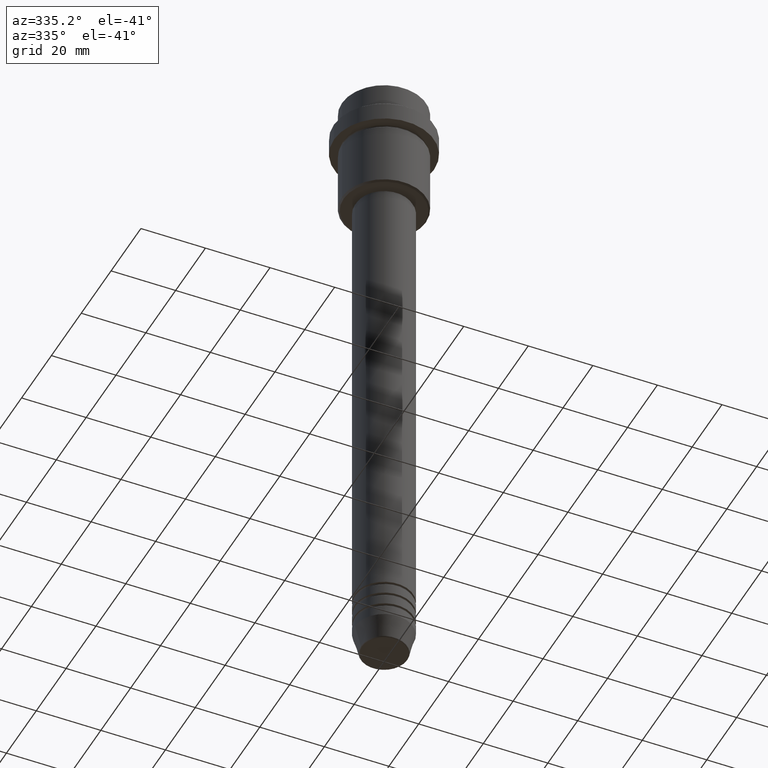
[diagram: clean part render]
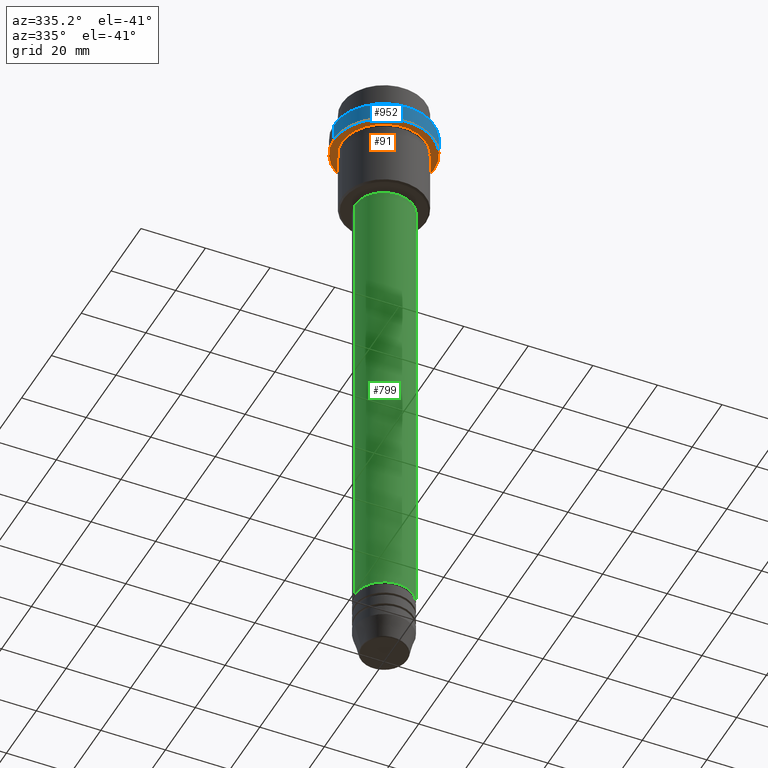
[diagram: same view with three faces highlighted in distinct colors, each labeled with its STEP entity id]
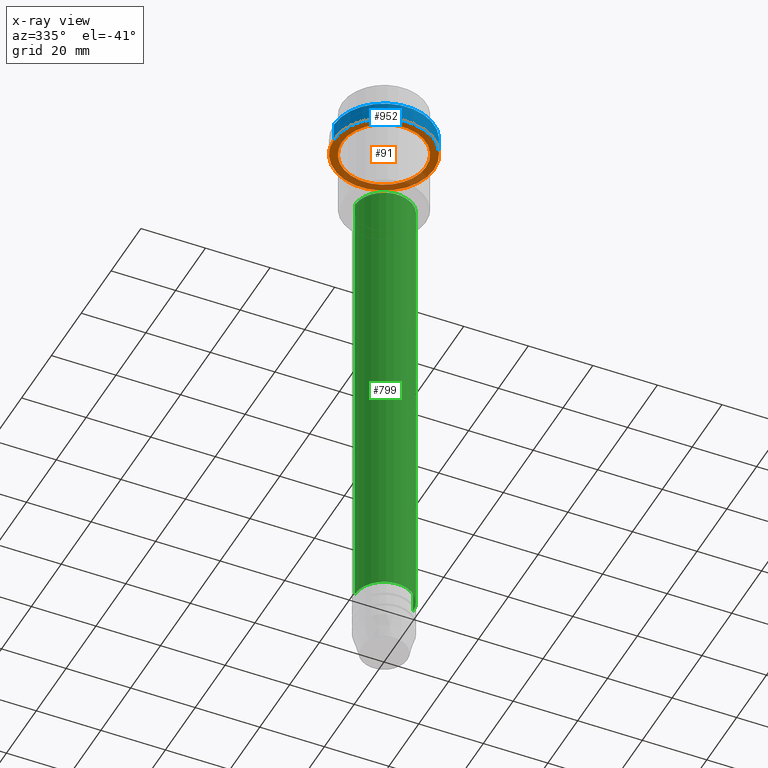
[diagram: x-ray of the same camera — body ghosted, the three highlighted faces saturated]
A machine part, auxiliary view with three faces highlighted in distinct colors.
The next image is the same camera in x-ray (body ghosted, the three faces saturated) — at least one of them is partly hidden behind the body in this view.
Their STEP definitions:

[orange] entity #91 — the highlighted planar face has unit normal (0, 0, -1).
#10 = DIRECTION ( 'NONE',  ( -0.000000000000000000, -0.000000000000000000, 1.000000000000000000 ) ) ;
#21 = DIRECTION ( 'NONE',  ( 1.000000000000000000, 0.000000000000000000, 0.000000000000000000 ) ) ;
#91 = ADVANCED_FACE ( 'NONE', ( #386, #1366 ), #1137, .T. ) ;
#144 = DIRECTION ( 'NONE',  ( -0.000000000000000000, -0.000000000000000000, 1.000000000000000000 ) ) ;
#154 = EDGE_LOOP ( 'NONE', ( #897, #724 ) ) ;
#186 = AXIS2_PLACEMENT_3D ( 'NONE', #1131, #935, #807 ) ;
#204 = EDGE_CURVE ( 'NONE', #1166, #473, #1377, .T. ) ;
#206 = DIRECTION ( 'NONE',  ( -0.000000000000000000, -0.000000000000000000, 1.000000000000000000 ) ) ;
#236 = AXIS2_PLACEMENT_3D ( 'NONE', #534, #954, #504 ) ;
#302 = EDGE_CURVE ( 'NONE', #1262, #1255, #1174, .T. ) ;
#347 = CARTESIAN_POINT ( 'NONE',  ( -15.50000000000000000, 1.898202538678397557E-15, -15.00000000000000000 ) ) ;
#353 = AXIS2_PLACEMENT_3D ( 'NONE', #1349, #144, #371 ) ;
#358 = CIRCLE ( 'NONE', #987, 15.50000000000000000 ) ;
#369 = EDGE_CURVE ( 'NONE', #1255, #1262, #1379, .T. ) ;
#371 = DIRECTION ( 'NONE',  ( 1.000000000000000000, 0.000000000000000000, 0.000000000000000000 ) ) ;
#386 = FACE_BOUND ( 'NONE', #562, .T. ) ;
#407 = CARTESIAN_POINT ( 'NONE',  ( 0.000000000000000000, 0.000000000000000000, -15.00000000000000000 ) ) ;
#447 = ORIENTED_EDGE ( 'NONE', *, *, #369, .T. ) ;
#473 = VERTEX_POINT ( 'NONE', #347 ) ;
#489 = AXIS2_PLACEMENT_3D ( 'NONE', #407, #206, #512 ) ;
#499 = EDGE_CURVE ( 'NONE', #473, #1166, #358, .T. ) ;
#504 = DIRECTION ( 'NONE',  ( -1.000000000000000000, 0.000000000000000000, 0.000000000000000000 ) ) ;
#512 = DIRECTION ( 'NONE',  ( -1.000000000000000000, 0.000000000000000000, 0.000000000000000000 ) ) ;
#534 = CARTESIAN_POINT ( 'NONE',  ( 0.000000000000000000, 0.000000000000000000, -15.00000000000000000 ) ) ;
#550 = CARTESIAN_POINT ( 'NONE',  ( 0.000000000000000000, 0.000000000000000000, -15.00000000000000000 ) ) ;
#562 = EDGE_LOOP ( 'NONE', ( #1235, #447 ) ) ;
#724 = ORIENTED_EDGE ( 'NONE', *, *, #499, .F. ) ;
#792 = CARTESIAN_POINT ( 'NONE',  ( 15.50000000000000000, 0.000000000000000000, -15.00000000000000000 ) ) ;
#807 = DIRECTION ( 'NONE',  ( -1.000000000000000000, 0.000000000000000000, -0.000000000000000000 ) ) ;
#897 = ORIENTED_EDGE ( 'NONE', *, *, #204, .F. ) ;
#911 = CARTESIAN_POINT ( 'NONE',  ( 12.99999999999999645, 1.592040838891558701E-15, -15.00000000000000000 ) ) ;
#928 = CARTESIAN_POINT ( 'NONE',  ( -12.99999999999999645, 0.000000000000000000, -15.00000000000000000 ) ) ;
#935 = DIRECTION ( 'NONE',  ( 0.000000000000000000, 0.000000000000000000, -1.000000000000000000 ) ) ;
#954 = DIRECTION ( 'NONE',  ( -0.000000000000000000, -0.000000000000000000, 1.000000000000000000 ) ) ;
#987 = AXIS2_PLACEMENT_3D ( 'NONE', #550, #10, #21 ) ;
#1131 = CARTESIAN_POINT ( 'NONE',  ( 0.000000000000000000, 15.50000000000000000, -15.00000000000000000 ) ) ;
#1137 = PLANE ( 'NONE',  #186 ) ;
#1166 = VERTEX_POINT ( 'NONE', #792 ) ;
#1174 = CIRCLE ( 'NONE', #236, 12.99999999999999645 ) ;
#1235 = ORIENTED_EDGE ( 'NONE', *, *, #302, .T. ) ;
#1255 = VERTEX_POINT ( 'NONE', #911 ) ;
#1262 = VERTEX_POINT ( 'NONE', #928 ) ;
#1349 = CARTESIAN_POINT ( 'NONE',  ( 0.000000000000000000, 0.000000000000000000, -15.00000000000000000 ) ) ;
#1366 = FACE_OUTER_BOUND ( 'NONE', #154, .T. ) ;
#1377 = CIRCLE ( 'NONE', #353, 15.50000000000000000 ) ;
#1379 = CIRCLE ( 'NONE', #489, 12.99999999999999645 ) ;

[blue] entity #952 — the highlighted cylindrical surface (partial cylindrical patch) has radius 15.5 mm, axis along (-0, -0, 1).
#10 = DIRECTION ( 'NONE',  ( -0.000000000000000000, -0.000000000000000000, 1.000000000000000000 ) ) ;
#21 = DIRECTION ( 'NONE',  ( 1.000000000000000000, 0.000000000000000000, 0.000000000000000000 ) ) ;
#62 = CARTESIAN_POINT ( 'NONE',  ( 0.000000000000000000, 0.000000000000000000, -9.499999999999984013 ) ) ;
#194 = FACE_OUTER_BOUND ( 'NONE', #865, .T. ) ;
#196 = DIRECTION ( 'NONE',  ( 1.000000000000000000, 0.000000000000000000, 0.000000000000000000 ) ) ;
#257 = VECTOR ( 'NONE', #747, 1000.000000000000000 ) ;
#265 = DIRECTION ( 'NONE',  ( -0.000000000000000000, -0.000000000000000000, 1.000000000000000000 ) ) ;
#279 = VERTEX_POINT ( 'NONE', #653 ) ;
#291 = EDGE_CURVE ( 'NONE', #1166, #279, #1198, .T. ) ;
#322 = CYLINDRICAL_SURFACE ( 'NONE', #602, 15.50000000000000000 ) ;
#347 = CARTESIAN_POINT ( 'NONE',  ( -15.50000000000000000, 1.898202538678397557E-15, -15.00000000000000000 ) ) ;
#358 = CIRCLE ( 'NONE', #987, 15.50000000000000000 ) ;
#473 = VERTEX_POINT ( 'NONE', #347 ) ;
#492 = AXIS2_PLACEMENT_3D ( 'NONE', #62, #828, #196 ) ;
#499 = EDGE_CURVE ( 'NONE', #473, #1166, #358, .T. ) ;
#502 = CARTESIAN_POINT ( 'NONE',  ( -15.50000000000000000, 1.898202538678397557E-15, -9.499999999999984013 ) ) ;
#507 = DIRECTION ( 'NONE',  ( 1.000000000000000000, 0.000000000000000000, 0.000000000000000000 ) ) ;
#550 = CARTESIAN_POINT ( 'NONE',  ( 0.000000000000000000, 0.000000000000000000, -15.00000000000000000 ) ) ;
#602 = AXIS2_PLACEMENT_3D ( 'NONE', #1294, #951, #507 ) ;
#653 = CARTESIAN_POINT ( 'NONE',  ( 15.50000000000000000, 0.000000000000000000, -9.499999999999984013 ) ) ;
#747 = DIRECTION ( 'NONE',  ( -0.000000000000000000, -0.000000000000000000, 1.000000000000000000 ) ) ;
#792 = CARTESIAN_POINT ( 'NONE',  ( 15.50000000000000000, 0.000000000000000000, -15.00000000000000000 ) ) ;
#828 = DIRECTION ( 'NONE',  ( 0.000000000000000000, 0.000000000000000000, -1.000000000000000000 ) ) ;
#865 = EDGE_LOOP ( 'NONE', ( #1268, #1183, #1395, #893 ) ) ;
#893 = ORIENTED_EDGE ( 'NONE', *, *, #1087, .T. ) ;
#926 = VECTOR ( 'NONE', #265, 1000.000000000000000 ) ;
#932 = LINE ( 'NONE', #1253, #926 ) ;
#951 = DIRECTION ( 'NONE',  ( -0.000000000000000000, -0.000000000000000000, 1.000000000000000000 ) ) ;
#952 = ADVANCED_FACE ( 'NONE', ( #194 ), #322, .T. ) ;
#971 = VERTEX_POINT ( 'NONE', #502 ) ;
#987 = AXIS2_PLACEMENT_3D ( 'NONE', #550, #10, #21 ) ;
#990 = CIRCLE ( 'NONE', #492, 15.50000000000000000 ) ;
#1087 = EDGE_CURVE ( 'NONE', #279, #971, #990, .T. ) ;
#1166 = VERTEX_POINT ( 'NONE', #792 ) ;
#1183 = ORIENTED_EDGE ( 'NONE', *, *, #499, .T. ) ;
#1198 = LINE ( 'NONE', #1298, #257 ) ;
#1253 = CARTESIAN_POINT ( 'NONE',  ( -15.50000000000000000, 1.898202538678397557E-15, 0.000000000000000000 ) ) ;
#1268 = ORIENTED_EDGE ( 'NONE', *, *, #1372, .F. ) ;
#1294 = CARTESIAN_POINT ( 'NONE',  ( 0.000000000000000000, 0.000000000000000000, 0.000000000000000000 ) ) ;
#1298 = CARTESIAN_POINT ( 'NONE',  ( 15.50000000000000000, 0.000000000000000000, 0.000000000000000000 ) ) ;
#1372 = EDGE_CURVE ( 'NONE', #473, #971, #932, .T. ) ;
#1395 = ORIENTED_EDGE ( 'NONE', *, *, #291, .T. ) ;

[green] entity #799 — the highlighted cylindrical surface (edge-blend (fillet) strip) has radius 9 mm, axis along (-0, -0, 1).
#2 = CARTESIAN_POINT ( 'NONE',  ( 9.000000000000000000, 0.000000000000000000, -181.9999999999998863 ) ) ;
#49 = VERTEX_POINT ( 'NONE', #2 ) ;
#89 = EDGE_CURVE ( 'NONE', #225, #455, #1360, .T. ) ;
#112 = EDGE_LOOP ( 'NONE', ( #1258, #337, #294, #768 ) ) ;
#150 = CARTESIAN_POINT ( 'NONE',  ( -9.000000000000001776, 1.102182119232617911E-15, 0.000000000000000000 ) ) ;
#197 = DIRECTION ( 'NONE',  ( 1.000000000000000000, 0.000000000000000000, 0.000000000000000000 ) ) ;
#203 = EDGE_CURVE ( 'NONE', #225, #49, #374, .T. ) ;
#225 = VERTEX_POINT ( 'NONE', #1378 ) ;
#294 = ORIENTED_EDGE ( 'NONE', *, *, #978, .T. ) ;
#299 = LINE ( 'NONE', #1373, #1173 ) ;
#308 = CYLINDRICAL_SURFACE ( 'NONE', #905, 9.000000000000001776 ) ;
#337 = ORIENTED_EDGE ( 'NONE', *, *, #203, .T. ) ;
#354 = CARTESIAN_POINT ( 'NONE',  ( 0.000000000000000000, 0.000000000000000000, -37.00000000000000711 ) ) ;
#374 = CIRCLE ( 'NONE', #965, 9.000000000000000000 ) ;
#455 = VERTEX_POINT ( 'NONE', #545 ) ;
#498 = DIRECTION ( 'NONE',  ( -0.000000000000000000, -0.000000000000000000, 1.000000000000000000 ) ) ;
#545 = CARTESIAN_POINT ( 'NONE',  ( -9.000000000000001776, 1.102182119232617911E-15, -37.00000000000000711 ) ) ;
#622 = AXIS2_PLACEMENT_3D ( 'NONE', #354, #1228, #1080 ) ;
#743 = CARTESIAN_POINT ( 'NONE',  ( 0.000000000000000000, 0.000000000000000000, 0.000000000000000000 ) ) ;
#768 = ORIENTED_EDGE ( 'NONE', *, *, #1233, .F. ) ;
#799 = ADVANCED_FACE ( 'NONE', ( #1285 ), #308, .T. ) ;
#905 = AXIS2_PLACEMENT_3D ( 'NONE', #743, #1181, #197 ) ;
#965 = AXIS2_PLACEMENT_3D ( 'NONE', #1040, #1046, #1343 ) ;
#978 = EDGE_CURVE ( 'NONE', #49, #1353, #299, .T. ) ;
#1040 = CARTESIAN_POINT ( 'NONE',  ( 0.000000000000000000, 0.000000000000000000, -181.9999999999998863 ) ) ;
#1046 = DIRECTION ( 'NONE',  ( -0.000000000000000000, -0.000000000000000000, 1.000000000000000000 ) ) ;
#1076 = DIRECTION ( 'NONE',  ( -0.000000000000000000, -0.000000000000000000, 1.000000000000000000 ) ) ;
#1080 = DIRECTION ( 'NONE',  ( 1.000000000000000000, 0.000000000000000000, 0.000000000000000000 ) ) ;
#1083 = CIRCLE ( 'NONE', #622, 9.000000000000001776 ) ;
#1173 = VECTOR ( 'NONE', #1076, 1000.000000000000000 ) ;
#1181 = DIRECTION ( 'NONE',  ( -0.000000000000000000, -0.000000000000000000, 1.000000000000000000 ) ) ;
#1228 = DIRECTION ( 'NONE',  ( -0.000000000000000000, -0.000000000000000000, 1.000000000000000000 ) ) ;
#1233 = EDGE_CURVE ( 'NONE', #455, #1353, #1083, .T. ) ;
#1258 = ORIENTED_EDGE ( 'NONE', *, *, #89, .F. ) ;
#1285 = FACE_OUTER_BOUND ( 'NONE', #112, .T. ) ;
#1343 = DIRECTION ( 'NONE',  ( 1.000000000000000000, 0.000000000000000000, 0.000000000000000000 ) ) ;
#1350 = CARTESIAN_POINT ( 'NONE',  ( 9.000000000000001776, 0.000000000000000000, -37.00000000000000711 ) ) ;
#1352 = VECTOR ( 'NONE', #498, 1000.000000000000000 ) ;
#1353 = VERTEX_POINT ( 'NONE', #1350 ) ;
#1360 = LINE ( 'NONE', #150, #1352 ) ;
#1373 = CARTESIAN_POINT ( 'NONE',  ( 9.000000000000001776, 0.000000000000000000, 0.000000000000000000 ) ) ;
#1378 = CARTESIAN_POINT ( 'NONE',  ( -9.000000000000000000, 1.102182119232617714E-15, -181.9999999999998863 ) ) ;